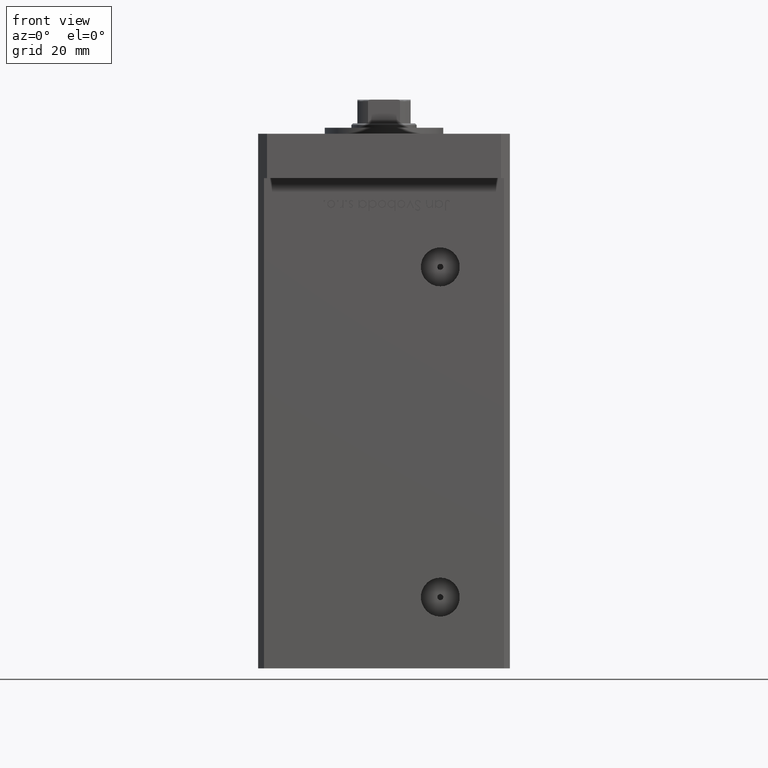
[diagram: clean part render]
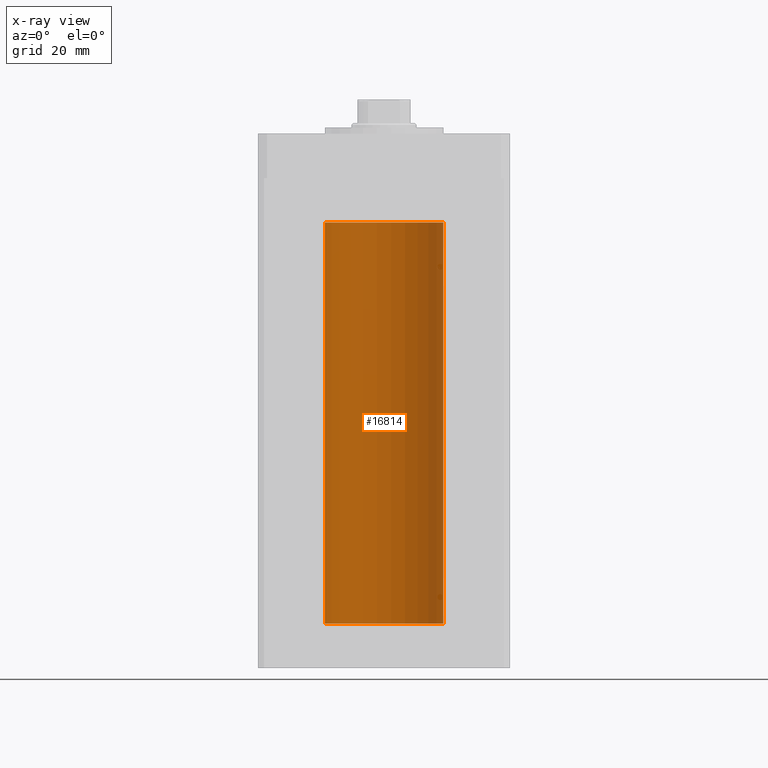
[diagram: x-ray — body ghosted, one internal face saturated and labeled with its STEP entity id]
A machine part, front view, then the same camera in x-ray: the body is ghosted and one INTERNAL B-rep face — a face not visible from any outside direction — is saturated and labeled: STEP entity #16814.
In plain terms, the highlighted cylindrical surface (partial cylindrical patch) has radius 20 mm, axis along (-0, -0, -1).
Its self-contained STEP definition (entity closure, byte-faithful):
#1583 = EDGE_CURVE ( 'NONE', #42396, #27112, #33985, .T. ) ;
#2386 = DIRECTION ( 'NONE',  ( -0.000000000000000000, 0.000000000000000000, 1.000000000000000000 ) ) ;
#4081 = CARTESIAN_POINT ( 'NONE',  ( 0.000000000000000000, 0.000000000000000000, 135.5000000000000000 ) ) ;
#7855 = VECTOR ( 'NONE', #53557, 1000.000000000000000 ) ;
#9136 = AXIS2_PLACEMENT_3D ( 'NONE', #48212, #2386, #22186 ) ;
#9278 = DIRECTION ( 'NONE',  ( -0.000000000000000000, -0.000000000000000000, -1.000000000000000000 ) ) ;
#10594 = DIRECTION ( 'NONE',  ( -0.000000000000000000, 0.000000000000000000, 1.000000000000000000 ) ) ;
#10841 = CARTESIAN_POINT ( 'NONE',  ( 20.00000000000000000, 2.449293598294706513E-15, 135.5000000000000000 ) ) ;
#12475 = FACE_OUTER_BOUND ( 'NONE', #23796, .T. ) ;
#13909 = ORIENTED_EDGE ( 'NONE', *, *, #30676, .T. ) ;
#14795 = EDGE_CURVE ( 'NONE', #38675, #51061, #48677, .T. ) ;
#16814 = ADVANCED_FACE ( 'NONE', ( #12475 ), #20887, .F. ) ;
#17351 = ORIENTED_EDGE ( 'NONE', *, *, #52508, .F. ) ;
#20390 = CIRCLE ( 'NONE', #9136, 20.00000000000000000 ) ;
#20609 = DIRECTION ( 'NONE',  ( -0.000000000000000000, -0.000000000000000000, -1.000000000000000000 ) ) ;
#20887 = CYLINDRICAL_SURFACE ( 'NONE', #24384, 20.00000000000000000 ) ;
#22186 = DIRECTION ( 'NONE',  ( 1.000000000000000000, 0.000000000000000000, 0.000000000000000000 ) ) ;
#22316 = CARTESIAN_POINT ( 'NONE',  ( -20.00000000000000000, 0.000000000000000000, 135.5000000000000000 ) ) ;
#22600 = CARTESIAN_POINT ( 'NONE',  ( 20.00000000000000000, 2.449293598294706513E-15, 0.000000000000000000 ) ) ;
#23207 = AXIS2_PLACEMENT_3D ( 'NONE', #27134, #10594, #51339 ) ;
#23796 = EDGE_LOOP ( 'NONE', ( #47430, #13909, #35545, #17351 ) ) ;
#24066 = CIRCLE ( 'NONE', #23207, 20.00000000000000000 ) ;
#24384 = AXIS2_PLACEMENT_3D ( 'NONE', #4081, #20609, #37193 ) ;
#27112 = VERTEX_POINT ( 'NONE', #27361 ) ;
#27134 = CARTESIAN_POINT ( 'NONE',  ( 0.000000000000000000, 0.000000000000000000, 0.000000000000000000 ) ) ;
#27361 = CARTESIAN_POINT ( 'NONE',  ( -20.00000000000000000, 0.000000000000000000, 0.000000000000000000 ) ) ;
#30676 = EDGE_CURVE ( 'NONE', #38675, #42396, #20390, .T. ) ;
#32392 = CARTESIAN_POINT ( 'NONE',  ( 20.00000000000000000, 2.449293598294706513E-15, 135.5000000000000000 ) ) ;
#33985 = LINE ( 'NONE', #50281, #51735 ) ;
#35545 = ORIENTED_EDGE ( 'NONE', *, *, #1583, .T. ) ;
#37193 = DIRECTION ( 'NONE',  ( -1.000000000000000000, 0.000000000000000000, 0.000000000000000000 ) ) ;
#38675 = VERTEX_POINT ( 'NONE', #10841 ) ;
#42396 = VERTEX_POINT ( 'NONE', #22316 ) ;
#47430 = ORIENTED_EDGE ( 'NONE', *, *, #14795, .F. ) ;
#48212 = CARTESIAN_POINT ( 'NONE',  ( 0.000000000000000000, 0.000000000000000000, 135.5000000000000000 ) ) ;
#48677 = LINE ( 'NONE', #32392, #7855 ) ;
#50281 = CARTESIAN_POINT ( 'NONE',  ( -20.00000000000000000, 0.000000000000000000, 135.5000000000000000 ) ) ;
#51061 = VERTEX_POINT ( 'NONE', #22600 ) ;
#51339 = DIRECTION ( 'NONE',  ( 1.000000000000000000, 0.000000000000000000, 0.000000000000000000 ) ) ;
#51735 = VECTOR ( 'NONE', #9278, 1000.000000000000000 ) ;
#52508 = EDGE_CURVE ( 'NONE', #51061, #27112, #24066, .T. ) ;
#53557 = DIRECTION ( 'NONE',  ( -0.000000000000000000, -0.000000000000000000, -1.000000000000000000 ) ) ;